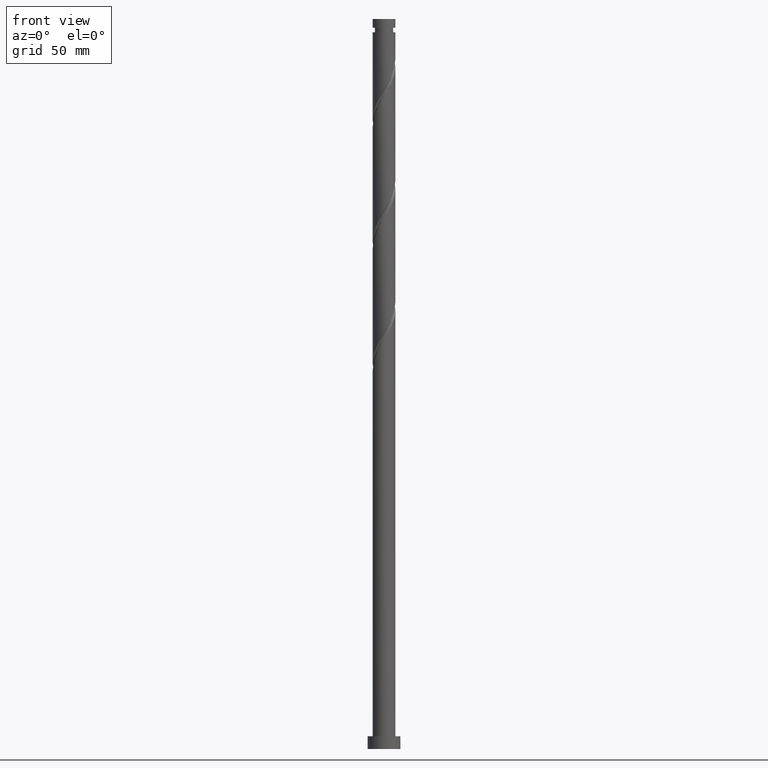
[diagram: clean part render]
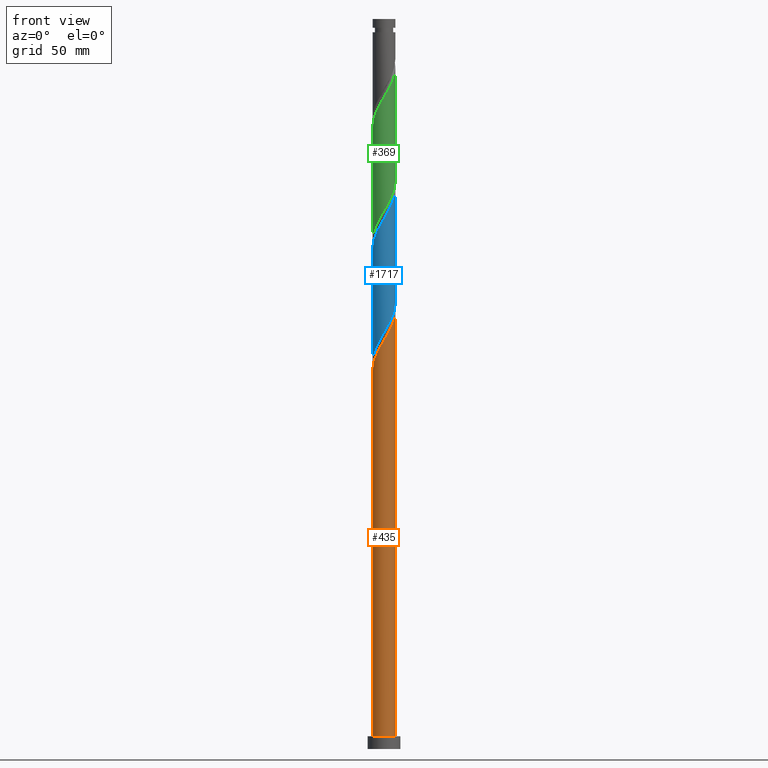
[diagram: same view with three faces highlighted in distinct colors, each labeled with its STEP entity id]
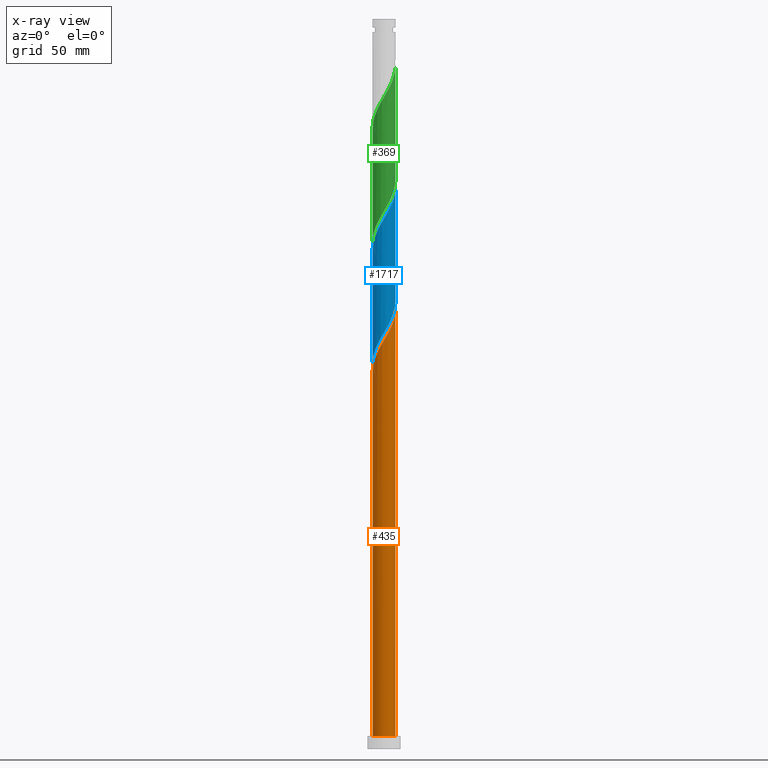
[diagram: x-ray of the same camera — body ghosted, the three highlighted faces saturated]
A machine part, front view with three faces highlighted in distinct colors.
The next image is the same camera in x-ray (body ghosted, the three faces saturated) — at least one of them is partly hidden behind the body in this view.
Their STEP definitions:

[orange] entity #435 — the highlighted cylindrical surface (edge-blend (fillet) strip) has radius 6.25 mm, axis along (-0, -0, -1).
#4 = CARTESIAN_POINT ( 'NONE',  ( 4.162407600581770062, -4.708331180837503460, 231.6344424453672275 ) ) ;
#15 = CARTESIAN_POINT ( 'NONE',  ( -4.682538449988054907, -4.139605496225888359, 214.9677757787005135 ) ) ;
#36 = EDGE_CURVE ( 'NONE', #1822, #460, #764, .T. ) ;
#38 = CARTESIAN_POINT ( 'NONE',  ( 5.926272746371335387, -1.985394503774121855, 237.1899980009228273 ) ) ;
#48 = CARTESIAN_POINT ( 'NONE',  ( 5.383982739937297701, -3.174150257322011726, 234.9677757787005987 ) ) ;
#64 = EDGE_CURVE ( 'NONE', #1822, #570, #656, .T. ) ;
#98 = CARTESIAN_POINT ( 'NONE',  ( 6.250000000000000000, 7.654042494670957606E-16, 400.0000000000000000 ) ) ;
#123 = FACE_OUTER_BOUND ( 'NONE', #965, .T. ) ;
#163 = CARTESIAN_POINT ( 'NONE',  ( 6.250000000000008882, 4.036072163579606767E-15, 240.6201103129568537 ) ) ;
#207 = CARTESIAN_POINT ( 'NONE',  ( 4.606386852552446065, -4.224180413362113029, 232.7455535564783986 ) ) ;
#299 = VERTEX_POINT ( 'NONE', #854 ) ;
#300 = CYLINDRICAL_SURFACE ( 'NONE', #530, 6.250000000000000000 ) ;
#307 = DIRECTION ( 'NONE',  ( 0.000000000000000000, 0.000000000000000000, 1.000000000000000000 ) ) ;
#313 = CIRCLE ( 'NONE', #840, 6.250000000000000000 ) ;
#325 = ORIENTED_EDGE ( 'NONE', *, *, #64, .T. ) ;
#326 = CARTESIAN_POINT ( 'NONE',  ( -5.440886128238424213, -3.075590697661642725, 212.7455535564783418 ) ) ;
#330 = CARTESIAN_POINT ( 'NONE',  ( -5.117628519970466527, -3.647450873337768851, 213.8566646675893992 ) ) ;
#331 = CARTESIAN_POINT ( 'NONE',  ( -3.191634364315947270, -5.413639222034018594, 218.3011091120339131 ) ) ;
#337 = CARTESIAN_POINT ( 'NONE',  ( -6.250000000000000000, 0.000000000000000000, 7.000000000000000000 ) ) ;
#340 = CARTESIAN_POINT ( 'NONE',  ( -1.996330611744778105, -5.958916313427995881, 220.5233313342561416 ) ) ;
#374 = CARTESIAN_POINT ( 'NONE',  ( 6.250000000000007105, -0.3560858590402048440, 240.0145190035723033 ) ) ;
#435 = ADVANCED_FACE ( 'NONE', ( #123 ), #300, .T. ) ;
#460 = VERTEX_POINT ( 'NONE', #1981 ) ;
#484 = CARTESIAN_POINT ( 'NONE',  ( 6.209556196377223891, -0.7098674834314696591, 239.4122202231450558 ) ) ;
#498 = VECTOR ( 'NONE', #1638, 1000.000000000000000 ) ;
#523 = CARTESIAN_POINT ( 'NONE',  ( 1.887497737385547270, -5.994278257904951168, 227.1899980009227420 ) ) ;
#529 = CARTESIAN_POINT ( 'NONE',  ( -6.158738212326547057, -1.250585132590492199, 209.4122202231449705 ) ) ;
#530 = AXIS2_PLACEMENT_3D ( 'NONE', #754, #1361, #913 ) ;
#570 = VERTEX_POINT ( 'NONE', #337 ) ;
#627 = ORIENTED_EDGE ( 'NONE', *, *, #36, .F. ) ;
#656 = LINE ( 'NONE', #667, #1811 ) ;
#667 = CARTESIAN_POINT ( 'NONE',  ( -6.250000000000000000, 0.000000000000000000, 400.0000000000000000 ) ) ;
#678 = DIRECTION ( 'NONE',  ( -0.000000000000000000, -0.000000000000000000, -1.000000000000000000 ) ) ;
#731 = CARTESIAN_POINT ( 'NONE',  ( -5.961440974416461813, -1.877157827288003622, 210.5233313342561701 ) ) ;
#754 = CARTESIAN_POINT ( 'NONE',  ( 0.000000000000000000, 0.000000000000000000, 400.0000000000000000 ) ) ;
#764 =( BOUNDED_CURVE ( )  B_SPLINE_CURVE ( 2, ( #1373, #2009, #1858, #529, #731, #1340, #326, #330, #15, #837, #1250, #331, #1443, #340, #1114, #1290, #1730, #1579, #1889, #523, #1134, #1760, #792, #4, #207, #1402, #48, #1412, #38, #991, #484, #374, #163 ),
 .UNSPECIFIED., .F., .T. ) 
 B_SPLINE_CURVE_WITH_KNOTS ( ( 3, 2, 2, 2, 2, 2, 2, 2, 2, 2, 2, 2, 2, 2, 2, 2, 3 ),
 ( 0.05452860127731158635, 0.05833333333333334814, 0.06666666666666665186, 0.07499999999999995559, 0.08333333333333337034, 0.09166666666666667407, 0.09999999999999997780, 0.1083333333333332815, 0.1166666666666666963, 0.1250000000000000000, 0.1333333333333333037, 0.1416666666666667185, 0.1500000000000000222, 0.1583333333333333259, 0.1666666666666666297, 0.1750000000000000444, 0.1795286012773114892 ),
 .UNSPECIFIED. ) 
 CURVE ( )  GEOMETRIC_REPRESENTATION_ITEM ( )  RATIONAL_B_SPLINE_CURVE ( ( 0.9066196499552267030, 0.9068171577856394272, 0.9090909090909382595, 0.9041108139711866443, 0.9090909090909382595, 0.9041108139711866443, 0.9090909090909382595, 0.9041108139711866443, 0.9090909090909382595, 0.9041108139711866443, 0.9090909090909382595, 0.9041108139711866443, 0.9090909090909382595, 0.9041108139711866443, 0.9090909090909382595, 0.9041108139711866443, 0.9090909090909382595, 0.9041108139711866443, 0.9090909090909382595, 0.9041108139711866443, 0.9090909090909382595, 0.9041108139711866443, 0.9090909090909382595, 0.9041108139711866443, 0.9090909090909382595, 0.9041108139711866443, 0.9090909090909382595, 0.9041108139711866443, 0.9090909090909382595, 0.9041108139711866443, 0.9090909090909382595, 0.9063845652764854766, 0.9066196499552265919 ) ) 
 REPRESENTATION_ITEM ( '' )  );
#792 = CARTESIAN_POINT ( 'NONE',  ( 3.627469755814540342, -5.089593615471762256, 230.5233313342561701 ) ) ;
#837 = CARTESIAN_POINT ( 'NONE',  ( -4.247448380005640622, -4.631760119114010976, 216.0788868898116561 ) ) ;
#840 = AXIS2_PLACEMENT_3D ( 'NONE', #946, #307, #930 ) ;
#854 = CARTESIAN_POINT ( 'NONE',  ( 6.250000000000000000, 7.654042494670957606E-16, 7.000000000000000000 ) ) ;
#913 = DIRECTION ( 'NONE',  ( -1.000000000000000000, 0.000000000000000000, 0.000000000000000000 ) ) ;
#930 = DIRECTION ( 'NONE',  ( 1.000000000000000000, 0.000000000000000000, 0.000000000000000000 ) ) ;
#946 = CARTESIAN_POINT ( 'NONE',  ( 0.000000000000000000, 0.000000000000000000, 7.000000000000000000 ) ) ;
#965 = EDGE_LOOP ( 'NONE', ( #1667, #627, #325, #1575 ) ) ;
#991 = CARTESIAN_POINT ( 'NONE',  ( 6.134946117391188558, -1.362518138790944189, 238.3011091120338847 ) ) ;
#1075 = CARTESIAN_POINT ( 'NONE',  ( -6.250000000000008882, 1.130100205802290084E-14, 207.2867769796235393 ) ) ;
#1114 = CARTESIAN_POINT ( 'NONE',  ( -1.355054121864018857, -6.101338240650115097, 221.6344424453673128 ) ) ;
#1134 = CARTESIAN_POINT ( 'NONE',  ( 2.490014824216429723, -5.732567154005485222, 228.3011091120339131 ) ) ;
#1250 = CARTESIAN_POINT ( 'NONE',  ( -3.719541372160795945, -5.022699670574015229, 217.1899980009227988 ) ) ;
#1290 = CARTESIAN_POINT ( 'NONE',  ( -0.7137776319832596084, -6.243760167872234312, 222.7455535564783418 ) ) ;
#1340 = CARTESIAN_POINT ( 'NONE',  ( -5.764143736506377458, -2.503730521985514379, 211.6344424453672559 ) ) ;
#1361 = DIRECTION ( 'NONE',  ( -0.000000000000000000, -0.000000000000000000, -1.000000000000000000 ) ) ;
#1373 = CARTESIAN_POINT ( 'NONE',  ( -6.250000000000008882, 1.130100205802290084E-14, 207.2867769796235393 ) ) ;
#1402 = CARTESIAN_POINT ( 'NONE',  ( 5.050366104523118516, -3.740029645886721710, 233.8566646675894560 ) ) ;
#1412 = CARTESIAN_POINT ( 'NONE',  ( 5.717599375351478663, -2.608270868757299521, 236.0788868898116277 ) ) ;
#1443 = CARTESIAN_POINT ( 'NONE',  ( -2.593982488030362354, -5.686277767731009014, 219.4122202231450274 ) ) ;
#1544 = EDGE_CURVE ( 'NONE', #460, #299, #1971, .T. ) ;
#1575 = ORIENTED_EDGE ( 'NONE', *, *, #1837, .T. ) ;
#1579 = CARTESIAN_POINT ( 'NONE',  ( 0.5999708553810096934, -6.255721742095068372, 224.9677757787005419 ) ) ;
#1638 = DIRECTION ( 'NONE',  ( -0.000000000000000000, -0.000000000000000000, -1.000000000000000000 ) ) ;
#1667 = ORIENTED_EDGE ( 'NONE', *, *, #1544, .F. ) ;
#1730 = CARTESIAN_POINT ( 'NONE',  ( -0.05690338830112622037, -6.249740954983652230, 223.8566646675895129 ) ) ;
#1760 = CARTESIAN_POINT ( 'NONE',  ( 3.092531911047312398, -5.470856050106017499, 229.4122202231450274 ) ) ;
#1811 = VECTOR ( 'NONE', #678, 1000.000000000000000 ) ;
#1822 = VERTEX_POINT ( 'NONE', #1075 ) ;
#1837 = EDGE_CURVE ( 'NONE', #570, #299, #313, .T. ) ;
#1858 = CARTESIAN_POINT ( 'NONE',  ( -6.221452243844904473, -0.5966841522592460922, 208.3011091120339415 ) ) ;
#1889 = CARTESIAN_POINT ( 'NONE',  ( 1.243734296383280036, -6.125000000000010658, 226.0788868898116846 ) ) ;
#1971 = LINE ( 'NONE', #98, #498 ) ;
#1981 = CARTESIAN_POINT ( 'NONE',  ( 6.250000000000008882, 4.036072163579607556E-15, 240.6201103129568821 ) ) ;
#2009 = CARTESIAN_POINT ( 'NONE',  ( -6.250000000000008882, -0.2990249955421933059, 207.7953255051876056 ) ) ;

[blue] entity #1717 — the highlighted cylindrical surface (edge-blend (fillet) strip) has radius 6.25 mm, axis along (-0, -0, -1).
#18 = CARTESIAN_POINT ( 'NONE',  ( -4.162407600581769174, -4.708331180837497243, 220.5233313342561416 ) ) ;
#70 = CARTESIAN_POINT ( 'NONE',  ( -6.250000000000008882, -2.361849636465103295E-14, 273.9534436462902818 ) ) ;
#100 = EDGE_CURVE ( 'NONE', #1187, #899, #1166, .T. ) ;
#104 = VECTOR ( 'NONE', #450, 1000.000000000000000 ) ;
#107 = ORIENTED_EDGE ( 'NONE', *, *, #100, .F. ) ;
#142 = CARTESIAN_POINT ( 'NONE',  ( -3.191634364315947270, -5.413639222034018594, 284.9677757787006840 ) ) ;
#174 = CARTESIAN_POINT ( 'NONE',  ( -3.092531911047311066, -5.470856050106012169, 222.7455535564782849 ) ) ;
#185 = CARTESIAN_POINT ( 'NONE',  ( -5.717599375351472446, -2.608270868757294192, 216.0788868898116561 ) ) ;
#197 = CARTESIAN_POINT ( 'NONE',  ( -6.134946117391183229, -1.362518138790936417, 213.8566646675894560 ) ) ;
#269 = CARTESIAN_POINT ( 'NONE',  ( 4.606386852552446065, -4.224180413362113029, 299.4122202231451411 ) ) ;
#308 = CARTESIAN_POINT ( 'NONE',  ( 5.717599375351478663, -2.608270868757299521, 302.7455535564783418 ) ) ;
#324 = VERTEX_POINT ( 'NONE', #70 ) ;
#343 = EDGE_CURVE ( 'NONE', #324, #623, #617, .T. ) ;
#349 = CARTESIAN_POINT ( 'NONE',  ( 4.247448380005635293, -4.631760119114006535, 236.0788868898116561 ) ) ;
#361 = CARTESIAN_POINT ( 'NONE',  ( 0.7137776319832564997, -6.243760167872228095, 229.4122202231449705 ) ) ;
#394 = CARTESIAN_POINT ( 'NONE',  ( -6.221452243844904473, -0.5966841522592460922, 274.9677757787006271 ) ) ;
#436 = CARTESIAN_POINT ( 'NONE',  ( -0.05690338830112622037, -6.249740954983652230, 290.5233313342560564 ) ) ;
#445 = CARTESIAN_POINT ( 'NONE',  ( 6.134946117391188558, -1.362518138790944189, 304.9677757787006271 ) ) ;
#450 = DIRECTION ( 'NONE',  ( -0.000000000000000000, -0.000000000000000000, -1.000000000000000000 ) ) ;
#452 = CARTESIAN_POINT ( 'NONE',  ( 6.250000000000008882, 4.036072163579606767E-15, 307.2867769796234256 ) ) ;
#459 = CYLINDRICAL_SURFACE ( 'NONE', #1345, 6.250000000000000000 ) ;
#462 = CARTESIAN_POINT ( 'NONE',  ( 3.092531911047312398, -5.470856050106017499, 296.0788868898115993 ) ) ;
#471 = ORIENTED_EDGE ( 'NONE', *, *, #343, .F. ) ;
#494 = CARTESIAN_POINT ( 'NONE',  ( -6.250000000000003553, 9.058739744923171456E-15, 211.5376634666664586 ) ) ;
#504 = CARTESIAN_POINT ( 'NONE',  ( 6.250000000000001776, -0.2990249955421932504, 244.3624482744357920 ) ) ;
#510 = CARTESIAN_POINT ( 'NONE',  ( 6.250000000000008882, 4.036072163579607556E-15, 307.2867769796234256 ) ) ;
#513 = CARTESIAN_POINT ( 'NONE',  ( 1.996330611744770778, -5.958916313427988776, 231.6344424453672559 ) ) ;
#544 = CARTESIAN_POINT ( 'NONE',  ( -6.250000000000009770, -0.2990249955421833694, 274.4619921718543196 ) ) ;
#586 = CARTESIAN_POINT ( 'NONE',  ( 5.383982739937297701, -3.174150257322011726, 301.6344424453673128 ) ) ;
#593 = LINE ( 'NONE', #1678, #104 ) ;
#605 = CARTESIAN_POINT ( 'NONE',  ( -1.355054121864018857, -6.101338240650115097, 288.3011091120338847 ) ) ;
#614 = CARTESIAN_POINT ( 'NONE',  ( -2.593982488030362354, -5.686277767731009014, 286.0788868898117130 ) ) ;
#617 =( BOUNDED_CURVE ( )  B_SPLINE_CURVE ( 2, ( #1934, #544, #394, #1991, #1076, #1845, #1536, #1059, #1039, #923, #1999, #142, #614, #1527, #605, #1369, #436, #1219, #1350, #1834, #780, #462, #1227, #1697, #269, #773, #586, #308, #931, #445, #2006, #1389, #452 ),
 .UNSPECIFIED., .F., .T. ) 
 B_SPLINE_CURVE_WITH_KNOTS ( ( 3, 2, 2, 2, 2, 2, 2, 2, 2, 2, 2, 2, 2, 2, 2, 2, 3 ),
 ( 0.3045286012773114614, 0.3083333333333333481, 0.3166666666666666519, 0.3249999999999999556, 0.3333333333333333703, 0.3416666666666666741, 0.3499999999999999778, 0.3583333333333332815, 0.3666666666666666963, 0.3750000000000000000, 0.3833333333333333037, 0.3916666666666667185, 0.4000000000000000222, 0.4083333333333333259, 0.4166666666666666297, 0.4250000000000000444, 0.4295286012773112949 ),
 .UNSPECIFIED. ) 
 CURVE ( )  GEOMETRIC_REPRESENTATION_ITEM ( )  RATIONAL_B_SPLINE_CURVE ( ( 0.9066196499552267030, 0.9068171577856394272, 0.9090909090909382595, 0.9041108139711866443, 0.9090909090909382595, 0.9041108139711866443, 0.9090909090909382595, 0.9041108139711866443, 0.9090909090909382595, 0.9041108139711866443, 0.9090909090909382595, 0.9041108139711866443, 0.9090909090909382595, 0.9041108139711866443, 0.9090909090909382595, 0.9041108139711866443, 0.9090909090909382595, 0.9041108139711866443, 0.9090909090909382595, 0.9041108139711866443, 0.9090909090909382595, 0.9041108139711866443, 0.9090909090909382595, 0.9041108139711866443, 0.9090909090909382595, 0.9041108139711866443, 0.9090909090909382595, 0.9041108139711866443, 0.9090909090909382595, 0.9041108139711866443, 0.9090909090909382595, 0.9063845652764855876, 0.9066196499552265919 ) ) 
 REPRESENTATION_ITEM ( '' )  );
#623 = VERTEX_POINT ( 'NONE', #510 ) ;
#637 = CARTESIAN_POINT ( 'NONE',  ( 6.158738212326538175, -1.250585132590493309, 242.7455535564782849 ) ) ;
#641 = EDGE_CURVE ( 'NONE', #324, #899, #947, .T. ) ;
#648 = CARTESIAN_POINT ( 'NONE',  ( 0.05690338830112130764, -6.249740954983644237, 228.3011091120337994 ) ) ;
#717 = CARTESIAN_POINT ( 'NONE',  ( -6.250000000000003553, 9.058739744923171456E-15, 211.5376634666664586 ) ) ;
#773 = CARTESIAN_POINT ( 'NONE',  ( 5.050366104523118516, -3.740029645886721710, 300.5233313342561132 ) ) ;
#780 = CARTESIAN_POINT ( 'NONE',  ( 2.490014824216429723, -5.732567154005485222, 294.9677757787006271 ) ) ;
#803 = CARTESIAN_POINT ( 'NONE',  ( -3.627469755814538566, -5.089593615471751598, 221.6344424453671991 ) ) ;
#832 = CARTESIAN_POINT ( 'NONE',  ( -5.050366104523113187, -3.740029645886714160, 218.3011091120338847 ) ) ;
#899 = VERTEX_POINT ( 'NONE', #717 ) ;
#923 = CARTESIAN_POINT ( 'NONE',  ( -4.247448380005640622, -4.631760119114010976, 282.7455535564783418 ) ) ;
#931 = CARTESIAN_POINT ( 'NONE',  ( 5.926272746371335387, -1.985394503774121855, 303.8566646675894845 ) ) ;
#937 = CARTESIAN_POINT ( 'NONE',  ( 0.000000000000000000, 0.000000000000000000, 400.0000000000000000 ) ) ;
#947 = LINE ( 'NONE', #1439, #1598 ) ;
#950 = CARTESIAN_POINT ( 'NONE',  ( -2.490014824216430167, -5.732567154005474563, 223.8566646675893992 ) ) ;
#970 = CARTESIAN_POINT ( 'NONE',  ( -5.383982739937292372, -3.174150257322001956, 217.1899980009227988 ) ) ;
#981 = CARTESIAN_POINT ( 'NONE',  ( -1.243734296383280258, -6.124999999999998224, 226.0788868898116561 ) ) ;
#1039 = CARTESIAN_POINT ( 'NONE',  ( -4.682538449988054907, -4.139605496225888359, 281.6344424453673696 ) ) ;
#1059 = CARTESIAN_POINT ( 'NONE',  ( -5.117628519970466527, -3.647450873337768851, 280.5233313342560564 ) ) ;
#1076 = CARTESIAN_POINT ( 'NONE',  ( -5.961440974416461813, -1.877157827288003622, 277.1899980009227988 ) ) ;
#1087 = CARTESIAN_POINT ( 'NONE',  ( 6.250000000000003553, 6.009262999107450825E-15, 244.8709967999999151 ) ) ;
#1094 = EDGE_CURVE ( 'NONE', #623, #1187, #593, .T. ) ;
#1098 = CARTESIAN_POINT ( 'NONE',  ( 5.117628519970457646, -3.647450873337769295, 238.3011091120338847 ) ) ;
#1125 = CARTESIAN_POINT ( 'NONE',  ( 2.593982488030356137, -5.686277767731000132, 232.7455535564783418 ) ) ;
#1166 =( BOUNDED_CURVE ( )  B_SPLINE_CURVE ( 2, ( #1270, #504, #1913, #637, #1867, #1901, #1738, #1098, #1432, #349, #1279, #1422, #1125, #513, #1749, #361, #648, #1569, #981, #1719, #950, #174, #803, #18, #1259, #832, #970, #185, #1587, #197, #1599, #1880, #494 ),
 .UNSPECIFIED., .F., .T. ) 
 B_SPLINE_CURVE_WITH_KNOTS ( ( 3, 2, 2, 2, 2, 2, 2, 2, 2, 2, 2, 2, 2, 2, 2, 2, 3 ),
 ( 0.8045286012773115170, 0.8083333333333333481, 0.8166666666666666519, 0.8249999999999999556, 0.8333333333333333703, 0.8416666666666666741, 0.8499999999999999778, 0.8583333333333332815, 0.8666666666666666963, 0.8750000000000000000, 0.8833333333333333037, 0.8916666666666667185, 0.9000000000000000222, 0.9083333333333333259, 0.9166666666666666297, 0.9250000000000000444, 0.9295286012773115170 ),
 .UNSPECIFIED. ) 
 CURVE ( )  GEOMETRIC_REPRESENTATION_ITEM ( )  RATIONAL_B_SPLINE_CURVE ( ( 0.9066196499552214849, 0.9068171577856342092, 0.9090909090909331525, 0.9041108139711813152, 0.9090909090909331525, 0.9041108139711813152, 0.9090909090909331525, 0.9041108139711813152, 0.9090909090909331525, 0.9041108139711813152, 0.9090909090909331525, 0.9041108139711813152, 0.9090909090909331525, 0.9041108139711813152, 0.9090909090909331525, 0.9041108139711813152, 0.9090909090909331525, 0.9041108139711813152, 0.9090909090909331525, 0.9041108139711813152, 0.9090909090909331525, 0.9041108139711813152, 0.9090909090909331525, 0.9041108139711813152, 0.9090909090909331525, 0.9041108139711813152, 0.9090909090909331525, 0.9041108139711813152, 0.9090909090909331525, 0.9041108139711813152, 0.9090909090909331525, 0.9063845652764802585, 0.9066196499552214849 ) ) 
 REPRESENTATION_ITEM ( '' )  );
#1187 = VERTEX_POINT ( 'NONE', #1087 ) ;
#1219 = CARTESIAN_POINT ( 'NONE',  ( 0.5999708553810096934, -6.255721742095068372, 291.6344424453672559 ) ) ;
#1227 = CARTESIAN_POINT ( 'NONE',  ( 3.627469755814540342, -5.089593615471762256, 297.1899980009228557 ) ) ;
#1247 = DIRECTION ( 'NONE',  ( -0.000000000000000000, -0.000000000000000000, -1.000000000000000000 ) ) ;
#1259 = CARTESIAN_POINT ( 'NONE',  ( -4.606386852552440736, -4.224180413362104147, 219.4122202231449990 ) ) ;
#1270 = CARTESIAN_POINT ( 'NONE',  ( 6.250000000000003553, 6.009262999107450825E-15, 244.8709967999999151 ) ) ;
#1279 = CARTESIAN_POINT ( 'NONE',  ( 3.719541372160785286, -5.022699670574009012, 234.9677757787005135 ) ) ;
#1345 = AXIS2_PLACEMENT_3D ( 'NONE', #937, #1387, #1703 ) ;
#1350 = CARTESIAN_POINT ( 'NONE',  ( 1.243734296383280036, -6.125000000000010658, 292.7455535564783986 ) ) ;
#1369 = CARTESIAN_POINT ( 'NONE',  ( -0.7137776319832596084, -6.243760167872234312, 289.4122202231450274 ) ) ;
#1387 = DIRECTION ( 'NONE',  ( -0.000000000000000000, -0.000000000000000000, -1.000000000000000000 ) ) ;
#1389 = CARTESIAN_POINT ( 'NONE',  ( 6.250000000000006217, -0.3560858590402200541, 306.6811856702389605 ) ) ;
#1422 = CARTESIAN_POINT ( 'NONE',  ( 3.191634364315939720, -5.413639222034013265, 233.8566646675895413 ) ) ;
#1432 = CARTESIAN_POINT ( 'NONE',  ( 4.682538449988046025, -4.139605496225886583, 237.1899980009227136 ) ) ;
#1439 = CARTESIAN_POINT ( 'NONE',  ( -6.250000000000000000, 0.000000000000000000, 400.0000000000000000 ) ) ;
#1527 = CARTESIAN_POINT ( 'NONE',  ( -1.996330611744778105, -5.958916313427995881, 287.1899980009226852 ) ) ;
#1536 = CARTESIAN_POINT ( 'NONE',  ( -5.440886128238424213, -3.075590697661642725, 279.4122202231450842 ) ) ;
#1539 = EDGE_LOOP ( 'NONE', ( #1989, #471, #1872, #107 ) ) ;
#1569 = CARTESIAN_POINT ( 'NONE',  ( -0.5999708553810141343, -6.255721742095060378, 227.1899980009227988 ) ) ;
#1587 = CARTESIAN_POINT ( 'NONE',  ( -5.926272746371325617, -1.985394503774113195, 214.9677757787005419 ) ) ;
#1598 = VECTOR ( 'NONE', #1247, 1000.000000000000000 ) ;
#1599 = CARTESIAN_POINT ( 'NONE',  ( -6.209556196377216786, -0.7098674834314663284, 212.7455535564783418 ) ) ;
#1678 = CARTESIAN_POINT ( 'NONE',  ( 6.250000000000000000, 7.654042494670957606E-16, 400.0000000000000000 ) ) ;
#1696 = FACE_OUTER_BOUND ( 'NONE', #1539, .T. ) ;
#1697 = CARTESIAN_POINT ( 'NONE',  ( 4.162407600581770062, -4.708331180837503460, 298.3011091120337710 ) ) ;
#1703 = DIRECTION ( 'NONE',  ( -1.000000000000000000, 0.000000000000000000, 0.000000000000000000 ) ) ;
#1717 = ADVANCED_FACE ( 'NONE', ( #1696 ), #459, .T. ) ;
#1719 = CARTESIAN_POINT ( 'NONE',  ( -1.887497737385549712, -5.994278257904941398, 224.9677757787005987 ) ) ;
#1738 = CARTESIAN_POINT ( 'NONE',  ( 5.440886128238414443, -3.075590697661639616, 239.4122202231449705 ) ) ;
#1749 = CARTESIAN_POINT ( 'NONE',  ( 1.355054121864011973, -6.101338240650107103, 230.5233313342561416 ) ) ;
#1834 = CARTESIAN_POINT ( 'NONE',  ( 1.887497737385547270, -5.994278257904951168, 293.8566646675894845 ) ) ;
#1845 = CARTESIAN_POINT ( 'NONE',  ( -5.764143736506377458, -2.503730521985514379, 278.3011091120339415 ) ) ;
#1867 = CARTESIAN_POINT ( 'NONE',  ( 5.961440974416451155, -1.877157827288006953, 241.6344424453671991 ) ) ;
#1872 = ORIENTED_EDGE ( 'NONE', *, *, #641, .T. ) ;
#1880 = CARTESIAN_POINT ( 'NONE',  ( -6.250000000000002665, -0.3560858590401982382, 212.1432547760510658 ) ) ;
#1901 = CARTESIAN_POINT ( 'NONE',  ( 5.764143736506368576, -2.503730521985516155, 240.5233313342561701 ) ) ;
#1913 = CARTESIAN_POINT ( 'NONE',  ( 6.221452243844894703, -0.5966841522592505331, 243.8566646675894276 ) ) ;
#1934 = CARTESIAN_POINT ( 'NONE',  ( -6.250000000000008882, -2.361849636465103295E-14, 273.9534436462902818 ) ) ;
#1989 = ORIENTED_EDGE ( 'NONE', *, *, #1094, .F. ) ;
#1991 = CARTESIAN_POINT ( 'NONE',  ( -6.158738212326547057, -1.250585132590492199, 276.0788868898115993 ) ) ;
#1999 = CARTESIAN_POINT ( 'NONE',  ( -3.719541372160795945, -5.022699670574015229, 283.8566646675895981 ) ) ;
#2006 = CARTESIAN_POINT ( 'NONE',  ( 6.209556196377223891, -0.7098674834314696591, 306.0788868898117130 ) ) ;

[green] entity #369 — the highlighted cylindrical surface (edge-blend (fillet) strip) has radius 6.25 mm, axis along (-0, -0, -1).
#12 = CARTESIAN_POINT ( 'NONE',  ( -6.250000000000003553, -8.371112635572568635E-15, 278.2043301333332579 ) ) ;
#24 = CARTESIAN_POINT ( 'NONE',  ( 0.05690338830112130764, -6.249740954983644237, 294.9677757787004566 ) ) ;
#90 = CARTESIAN_POINT ( 'NONE',  ( -3.719541372160795945, -5.022699670574015229, 350.5233313342561701 ) ) ;
#111 = CARTESIAN_POINT ( 'NONE',  ( 4.162407600581770062, -4.708331180837503460, 364.9677757787005135 ) ) ;
#122 = CARTESIAN_POINT ( 'NONE',  ( 2.490014824216429723, -5.732567154005485222, 361.6344424453672559 ) ) ;
#131 = CARTESIAN_POINT ( 'NONE',  ( 5.383982739937297701, -3.174150257322011726, 368.3011091120339415 ) ) ;
#143 = CARTESIAN_POINT ( 'NONE',  ( -6.134946117391183229, -1.362518138790936417, 280.5233313342562269 ) ) ;
#148 = CARTESIAN_POINT ( 'NONE',  ( 0.000000000000000000, 0.000000000000000000, 400.0000000000000000 ) ) ;
#161 = CARTESIAN_POINT ( 'NONE',  ( -3.092531911047311066, -5.470856050106012169, 289.4122202231450274 ) ) ;
#182 = CARTESIAN_POINT ( 'NONE',  ( -2.490014824216430167, -5.732567154005474563, 290.5233313342560564 ) ) ;
#246 = CARTESIAN_POINT ( 'NONE',  ( -6.158738212326547057, -1.250585132590492199, 342.7455535564783418 ) ) ;
#256 = CARTESIAN_POINT ( 'NONE',  ( -1.996330611744778105, -5.958916313427995881, 353.8566646675894845 ) ) ;
#278 = CARTESIAN_POINT ( 'NONE',  ( 1.887497737385547270, -5.994278257904951168, 360.5233313342559995 ) ) ;
#279 = CARTESIAN_POINT ( 'NONE',  ( 6.250000000000008882, -6.278334476679388808E-16, 373.9534436462902249 ) ) ;
#309 = CARTESIAN_POINT ( 'NONE',  ( 0.7137776319832564997, -6.243760167872228095, 296.0788868898118267 ) ) ;
#338 = CARTESIAN_POINT ( 'NONE',  ( 4.682538449988046025, -4.139605496225886583, 303.8566646675894845 ) ) ;
#347 = CARTESIAN_POINT ( 'NONE',  ( -0.5999708553810141343, -6.255721742095060378, 293.8566646675894845 ) ) ;
#369 = ADVANCED_FACE ( 'NONE', ( #1545 ), #1380, .T. ) ;
#410 = VERTEX_POINT ( 'NONE', #279 ) ;
#413 = CARTESIAN_POINT ( 'NONE',  ( -0.7137776319832596084, -6.243760167872234312, 356.0788868898117130 ) ) ;
#432 = CARTESIAN_POINT ( 'NONE',  ( -3.191634364315947270, -5.413639222034018594, 351.6344424453671422 ) ) ;
#439 = VECTOR ( 'NONE', #645, 1000.000000000000000 ) ;
#444 = CARTESIAN_POINT ( 'NONE',  ( 0.5999708553810096934, -6.255721742095068372, 358.3011091120338847 ) ) ;
#474 = CARTESIAN_POINT ( 'NONE',  ( -1.243734296383280258, -6.124999999999998224, 292.7455535564782849 ) ) ;
#482 = CARTESIAN_POINT ( 'NONE',  ( 6.158738212326538175, -1.250585132590493309, 309.4122202231450842 ) ) ;
#490 = CARTESIAN_POINT ( 'NONE',  ( 5.117628519970457646, -3.647450873337769295, 304.9677757787006271 ) ) ;
#501 = CARTESIAN_POINT ( 'NONE',  ( -6.250000000000002665, -0.3560858590401982382, 278.8099214427177799 ) ) ;
#561 = CARTESIAN_POINT ( 'NONE',  ( 4.606386852552446065, -4.224180413362113029, 366.0788868898117698 ) ) ;
#573 = CARTESIAN_POINT ( 'NONE',  ( -5.117628519970466527, -3.647450873337768851, 347.1899980009227420 ) ) ;
#580 = EDGE_CURVE ( 'NONE', #1564, #643, #1276, .T. ) ;
#594 = CARTESIAN_POINT ( 'NONE',  ( -5.961440974416461813, -1.877157827288003622, 343.8566646675894845 ) ) ;
#635 = CARTESIAN_POINT ( 'NONE',  ( -5.926272746371325617, -1.985394503774113195, 281.6344424453672559 ) ) ;
#643 = VERTEX_POINT ( 'NONE', #12 ) ;
#645 = DIRECTION ( 'NONE',  ( -0.000000000000000000, -0.000000000000000000, -1.000000000000000000 ) ) ;
#654 = CARTESIAN_POINT ( 'NONE',  ( -5.717599375351472446, -2.608270868757294192, 282.7455535564783986 ) ) ;
#663 = ORIENTED_EDGE ( 'NONE', *, *, #580, .T. ) ;
#706 = EDGE_CURVE ( 'NONE', #410, #1663, #1111, .T. ) ;
#742 = CARTESIAN_POINT ( 'NONE',  ( 5.050366104523118516, -3.740029645886721710, 367.1899980009228557 ) ) ;
#752 = CARTESIAN_POINT ( 'NONE',  ( 3.092531911047312398, -5.470856050106017499, 362.7455535564782849 ) ) ;
#799 = ORIENTED_EDGE ( 'NONE', *, *, #1509, .F. ) ;
#811 = CARTESIAN_POINT ( 'NONE',  ( -5.050366104523113187, -3.740029645886714160, 284.9677757787005703 ) ) ;
#871 = CARTESIAN_POINT ( 'NONE',  ( -5.440886128238424213, -3.075590697661642725, 346.0788868898116561 ) ) ;
#880 = CARTESIAN_POINT ( 'NONE',  ( 5.717599375351478663, -2.608270868757299521, 369.4122202231450842 ) ) ;
#890 = CARTESIAN_POINT ( 'NONE',  ( 1.243734296383280036, -6.125000000000010658, 359.4122202231450842 ) ) ;
#912 = CARTESIAN_POINT ( 'NONE',  ( -6.250000000000009770, -1.019481931689367440E-14, 340.6201103129568537 ) ) ;
#948 = CARTESIAN_POINT ( 'NONE',  ( -3.627469755814538566, -5.089593615471751598, 288.3011091120338278 ) ) ;
#958 = CARTESIAN_POINT ( 'NONE',  ( 4.247448380005635293, -4.631760119114006535, 302.7455535564783418 ) ) ;
#1019 = CARTESIAN_POINT ( 'NONE',  ( 6.134946117391188558, -1.362518138790944189, 371.6344424453671422 ) ) ;
#1037 = CARTESIAN_POINT ( 'NONE',  ( -6.221452243844904473, -0.5966841522592460922, 341.6344424453673128 ) ) ;
#1047 = CARTESIAN_POINT ( 'NONE',  ( 6.250000000000008882, -6.278334476679388808E-16, 373.9534436462902249 ) ) ;
#1051 = DIRECTION ( 'NONE',  ( -1.000000000000000000, 0.000000000000000000, 0.000000000000000000 ) ) ;
#1077 = CARTESIAN_POINT ( 'NONE',  ( 1.996330611744770778, -5.958916313427988776, 298.3011091120338847 ) ) ;
#1096 = CARTESIAN_POINT ( 'NONE',  ( -4.606386852552440736, -4.224180413362104147, 286.0788868898115993 ) ) ;
#1104 = CARTESIAN_POINT ( 'NONE',  ( 5.440886128238414443, -3.075590697661639616, 306.0788868898117130 ) ) ;
#1111 = LINE ( 'NONE', #1121, #439 ) ;
#1112 = CARTESIAN_POINT ( 'NONE',  ( -6.250000000000003553, -8.371112635572568635E-15, 278.2043301333332579 ) ) ;
#1121 = CARTESIAN_POINT ( 'NONE',  ( 6.250000000000000000, 7.654042494670957606E-16, 400.0000000000000000 ) ) ;
#1142 = EDGE_CURVE ( 'NONE', #1663, #643, #1297, .T. ) ;
#1173 = VECTOR ( 'NONE', #1897, 1000.000000000000000 ) ;
#1199 = CARTESIAN_POINT ( 'NONE',  ( -6.250000000000007994, -0.2990249955422138450, 341.1286588385209484 ) ) ;
#1208 = CARTESIAN_POINT ( 'NONE',  ( 3.627469755814540342, -5.089593615471762256, 363.8566646675894845 ) ) ;
#1228 = CARTESIAN_POINT ( 'NONE',  ( 6.250000000000001776, -0.2990249955421932504, 311.0291149411024776 ) ) ;
#1248 = CARTESIAN_POINT ( 'NONE',  ( 6.250000000000003553, 6.009262999107450825E-15, 311.5376634666665154 ) ) ;
#1266 = CARTESIAN_POINT ( 'NONE',  ( -6.209556196377216786, -0.7098674834314663284, 279.4122202231449705 ) ) ;
#1276 = LINE ( 'NONE', #1715, #1173 ) ;
#1297 =( BOUNDED_CURVE ( )  B_SPLINE_CURVE ( 2, ( #1248, #1228, #1409, #482, #1877, #1399, #1104, #490, #338, #958, #1856, #1546, #1577, #1077, #1698, #309, #24, #347, #474, #1557, #182, #161, #948, #1567, #1096, #811, #1420, #654, #635, #143, #1266, #501, #1112 ),
 .UNSPECIFIED., .F., .T. ) 
 B_SPLINE_CURVE_WITH_KNOTS ( ( 3, 2, 2, 2, 2, 2, 2, 2, 2, 2, 2, 2, 2, 2, 2, 2, 3 ),
 ( 0.5545286012773115170, 0.5583333333333333481, 0.5666666666666666519, 0.5749999999999999556, 0.5833333333333333703, 0.5916666666666666741, 0.5999999999999999778, 0.6083333333333332815, 0.6166666666666666963, 0.6250000000000000000, 0.6333333333333333037, 0.6416666666666667185, 0.6500000000000000222, 0.6583333333333333259, 0.6666666666666666297, 0.6750000000000000444, 0.6795286012773115170 ),
 .UNSPECIFIED. ) 
 CURVE ( )  GEOMETRIC_REPRESENTATION_ITEM ( )  RATIONAL_B_SPLINE_CURVE ( ( 0.9066196499552214849, 0.9068171577856342092, 0.9090909090909331525, 0.9041108139711813152, 0.9090909090909331525, 0.9041108139711813152, 0.9090909090909331525, 0.9041108139711813152, 0.9090909090909331525, 0.9041108139711813152, 0.9090909090909331525, 0.9041108139711813152, 0.9090909090909331525, 0.9041108139711813152, 0.9090909090909331525, 0.9041108139711813152, 0.9090909090909331525, 0.9041108139711813152, 0.9090909090909331525, 0.9041108139711813152, 0.9090909090909331525, 0.9041108139711813152, 0.9090909090909331525, 0.9041108139711813152, 0.9090909090909331525, 0.9041108139711813152, 0.9090909090909331525, 0.9041108139711813152, 0.9090909090909331525, 0.9041108139711813152, 0.9090909090909331525, 0.9063845652764802585, 0.9066196499552214849 ) ) 
 REPRESENTATION_ITEM ( '' )  );
#1328 = CARTESIAN_POINT ( 'NONE',  ( -5.764143736506377458, -2.503730521985514379, 344.9677757787006271 ) ) ;
#1338 = CARTESIAN_POINT ( 'NONE',  ( -0.05690338830112622037, -6.249740954983652230, 357.1899980009227988 ) ) ;
#1347 = CARTESIAN_POINT ( 'NONE',  ( 6.250000000000010658, -0.3560858590401852486, 373.3478523369057029 ) ) ;
#1360 = CARTESIAN_POINT ( 'NONE',  ( 5.926272746371335387, -1.985394503774121855, 370.5233313342561701 ) ) ;
#1380 = CYLINDRICAL_SURFACE ( 'NONE', #1488, 6.250000000000000000 ) ;
#1399 = CARTESIAN_POINT ( 'NONE',  ( 5.764143736506368576, -2.503730521985516155, 307.1899980009229125 ) ) ;
#1409 = CARTESIAN_POINT ( 'NONE',  ( 6.221452243844894703, -0.5966841522592505331, 310.5233313342562269 ) ) ;
#1411 = ORIENTED_EDGE ( 'NONE', *, *, #1142, .F. ) ;
#1420 = CARTESIAN_POINT ( 'NONE',  ( -5.383982739937292372, -3.174150257322001956, 283.8566646675894276 ) ) ;
#1473 = EDGE_LOOP ( 'NONE', ( #1793, #799, #663, #1411 ) ) ;
#1488 = AXIS2_PLACEMENT_3D ( 'NONE', #148, #1515, #1051 ) ;
#1509 = EDGE_CURVE ( 'NONE', #1564, #410, #1597, .T. ) ;
#1515 = DIRECTION ( 'NONE',  ( -0.000000000000000000, -0.000000000000000000, -1.000000000000000000 ) ) ;
#1545 = FACE_OUTER_BOUND ( 'NONE', #1473, .T. ) ;
#1546 = CARTESIAN_POINT ( 'NONE',  ( 3.191634364315939720, -5.413639222034013265, 300.5233313342560564 ) ) ;
#1557 = CARTESIAN_POINT ( 'NONE',  ( -1.887497737385549712, -5.994278257904941398, 291.6344424453671991 ) ) ;
#1564 = VERTEX_POINT ( 'NONE', #912 ) ;
#1567 = CARTESIAN_POINT ( 'NONE',  ( -4.162407600581769174, -4.708331180837497243, 287.1899980009226852 ) ) ;
#1577 = CARTESIAN_POINT ( 'NONE',  ( 2.593982488030356137, -5.686277767731000132, 299.4122202231450274 ) ) ;
#1597 =( BOUNDED_CURVE ( )  B_SPLINE_CURVE ( 2, ( #1679, #1199, #1037, #246, #594, #1328, #871, #573, #1832, #1648, #90, #432, #1657, #256, #1795, #413, #1338, #444, #890, #278, #122, #752, #1208, #111, #561, #742, #131, #880, #1360, #1019, #1826, #1347, #1047 ),
 .UNSPECIFIED., .F., .T. ) 
 B_SPLINE_CURVE_WITH_KNOTS ( ( 3, 2, 2, 2, 2, 2, 2, 2, 2, 2, 2, 2, 2, 2, 2, 2, 3 ),
 ( 0.5545286012773118500, 0.5583333333333333481, 0.5666666666666666519, 0.5749999999999999556, 0.5833333333333332593, 0.5916666666666666741, 0.5999999999999999778, 0.6083333333333333925, 0.6166666666666666963, 0.6250000000000000000, 0.6333333333333333037, 0.6416666666666666075, 0.6500000000000000222, 0.6583333333333333259, 0.6666666666666667407, 0.6750000000000000444, 0.6795286012773117390 ),
 .UNSPECIFIED. ) 
 CURVE ( )  GEOMETRIC_REPRESENTATION_ITEM ( )  RATIONAL_B_SPLINE_CURVE ( ( 0.9066196499552267030, 0.9068171577856396492, 0.9090909090909382595, 0.9041108139711866443, 0.9090909090909382595, 0.9041108139711866443, 0.9090909090909382595, 0.9041108139711866443, 0.9090909090909382595, 0.9041108139711866443, 0.9090909090909382595, 0.9041108139711866443, 0.9090909090909382595, 0.9041108139711866443, 0.9090909090909382595, 0.9041108139711866443, 0.9090909090909382595, 0.9041108139711866443, 0.9090909090909382595, 0.9041108139711866443, 0.9090909090909382595, 0.9041108139711866443, 0.9090909090909382595, 0.9041108139711866443, 0.9090909090909382595, 0.9041108139711866443, 0.9090909090909382595, 0.9041108139711866443, 0.9090909090909382595, 0.9041108139711866443, 0.9090909090909382595, 0.9063845652764853655, 0.9066196499552267030 ) ) 
 REPRESENTATION_ITEM ( '' )  );
#1648 = CARTESIAN_POINT ( 'NONE',  ( -4.247448380005640622, -4.631760119114010976, 349.4122202231449705 ) ) ;
#1657 = CARTESIAN_POINT ( 'NONE',  ( -2.593982488030362354, -5.686277767731009014, 352.7455535564784554 ) ) ;
#1663 = VERTEX_POINT ( 'NONE', #1687 ) ;
#1679 = CARTESIAN_POINT ( 'NONE',  ( -6.250000000000009770, -1.019481931689367440E-14, 340.6201103129568537 ) ) ;
#1687 = CARTESIAN_POINT ( 'NONE',  ( 6.250000000000003553, 6.009262999107450825E-15, 311.5376634666665154 ) ) ;
#1698 = CARTESIAN_POINT ( 'NONE',  ( 1.355054121864011973, -6.101338240650107103, 297.1899980009227988 ) ) ;
#1715 = CARTESIAN_POINT ( 'NONE',  ( -6.250000000000000000, 0.000000000000000000, 400.0000000000000000 ) ) ;
#1793 = ORIENTED_EDGE ( 'NONE', *, *, #706, .F. ) ;
#1795 = CARTESIAN_POINT ( 'NONE',  ( -1.355054121864018857, -6.101338240650115097, 354.9677757787006840 ) ) ;
#1826 = CARTESIAN_POINT ( 'NONE',  ( 6.209556196377223891, -0.7098674834314696591, 372.7455535564783986 ) ) ;
#1832 = CARTESIAN_POINT ( 'NONE',  ( -4.682538449988054907, -4.139605496225888359, 348.3011091120339415 ) ) ;
#1856 = CARTESIAN_POINT ( 'NONE',  ( 3.719541372160785286, -5.022699670574009012, 301.6344424453672559 ) ) ;
#1877 = CARTESIAN_POINT ( 'NONE',  ( 5.961440974416451155, -1.877157827288006953, 308.3011091120338847 ) ) ;
#1897 = DIRECTION ( 'NONE',  ( -0.000000000000000000, -0.000000000000000000, -1.000000000000000000 ) ) ;